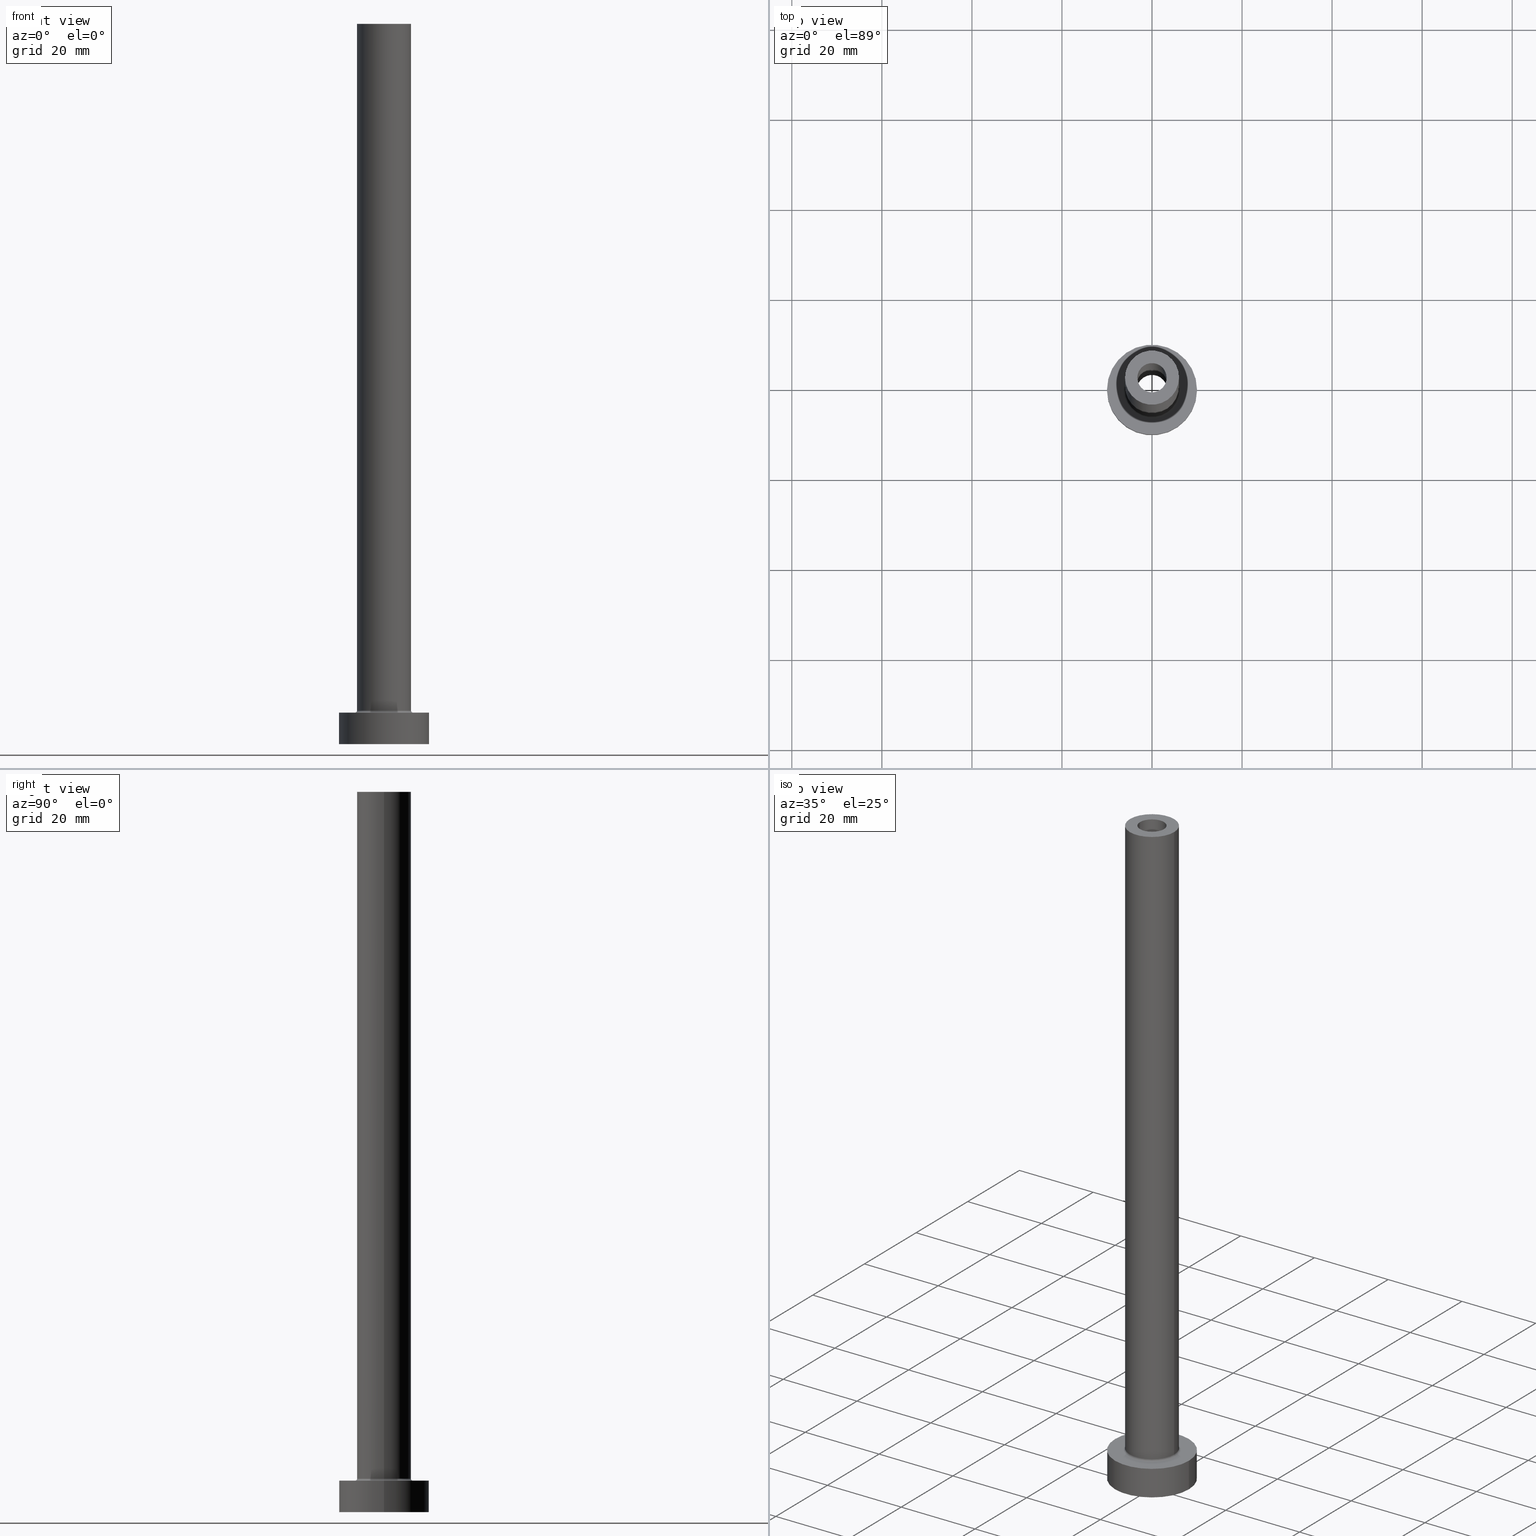
[diagram: canonical four-view strip — front | top / right | iso, engineering-drawing reading convention]
A machine part, canonical four-view strip (front | top / right | iso — engineering-drawing reading convention). The complete STEP part file that produces these views, byte-faithful:
ISO-10303-21;
HEADER;
FILE_DESCRIPTION (( 'STEP AP203' ),
    '1' );
FILE_NAME ('f25f.STEP',
    '2023-02-13T13:32:08',
    ( '' ),
    ( '' ),
    'SwSTEP 2.0',
    'SolidWorks 2019',
    '' );
FILE_SCHEMA (( 'CONFIG_CONTROL_DESIGN' ));
ENDSEC;

DATA;
#1 = CARTESIAN_POINT ( 'NONE',  ( 0.000000000000000000, 0.000000000000000000, 160.0000000000000000 ) ) ;
#2 = DIRECTION ( 'NONE',  ( 1.000000000000000000, 0.000000000000000000, 0.000000000000000000 ) ) ;
#3 = AXIS2_PLACEMENT_3D ( 'NONE', #337, #227, #298 ) ;
#4 = PERSON_AND_ORGANIZATION ( #405, #423 ) ;
#5 = DIRECTION ( 'NONE',  ( -1.000000000000000000, 0.000000000000000000, 0.000000000000000000 ) ) ;
#6 = COORDINATED_UNIVERSAL_TIME_OFFSET ( 1, 0, .AHEAD. ) ;
#7 = EDGE_CURVE ( 'NONE', #299, #183, #323, .T. ) ;
#8 = DATE_TIME_ROLE ( 'creation_date' ) ;
#9 = LINE ( 'NONE', #250, #452 ) ;
#10 = CIRCLE ( 'NONE', #292, 3.399999999999999911 ) ;
#11 = ORIENTED_EDGE ( 'NONE', *, *, #283, .T. ) ;
#12 = VERTEX_POINT ( 'NONE', #22 ) ;
#13 = CARTESIAN_POINT ( 'NONE',  ( -3.250000000000000444, 0.000000000000000000, 160.0000000000000000 ) ) ;
#14 = VERTEX_POINT ( 'NONE', #160 ) ;
#15 = CIRCLE ( 'NONE', #274, 6.500000000000000888 ) ;
#16 = CC_DESIGN_PERSON_AND_ORGANIZATION_ASSIGNMENT ( #252, #357, ( #432 ) ) ;
#17 = VERTEX_POINT ( 'NONE', #424 ) ;
#18 = EDGE_CURVE ( 'NONE', #167, #383, #112, .T. ) ;
#19 = VECTOR ( 'NONE', #259, 1000.000000000000000 ) ;
#20 = LOCAL_TIME ( 14, 32, 8.000000000000000000, #267 ) ;
#21 = DIRECTION ( 'NONE',  ( -1.000000000000000000, 0.000000000000000000, 0.000000000000000000 ) ) ;
#22 = CARTESIAN_POINT ( 'NONE',  ( 10.00000000000000000, 1.224646799147353256E-15, 7.000000000000000000 ) ) ;
#23 = CYLINDRICAL_SURFACE ( 'NONE', #402, 10.00000000000000000 ) ;
#24 = CIRCLE ( 'NONE', #285, 10.00000000000000000 ) ;
#25 = LINE ( 'NONE', #304, #104 ) ;
#26 = DIRECTION ( 'NONE',  ( 1.000000000000000000, 0.000000000000000000, 0.000000000000000000 ) ) ;
#27 = ORIENTED_EDGE ( 'NONE', *, *, #335, .F. ) ;
#28 = CIRCLE ( 'NONE', #178, 3.399999999999999911 ) ;
#29 = DATE_TIME_ROLE ( 'classification_date' ) ;
#30 = CARTESIAN_POINT ( 'NONE',  ( 0.000000000000000000, 0.000000000000000000, 160.0000000000000000 ) ) ;
#31 = FACE_OUTER_BOUND ( 'NONE', #325, .T. ) ;
#32 = CARTESIAN_POINT ( 'NONE',  ( 0.000000000000000000, 0.000000000000000000, 7.000000000000000000 ) ) ;
#33 = CIRCLE ( 'NONE', #429, 0.5000000000000004441 ) ;
#34 = APPLICATION_PROTOCOL_DEFINITION ( 'international standard', 'config_control_design', 1994, #387 ) ;
#35 = DIRECTION ( 'NONE',  ( 0.000000000000000000, 0.000000000000000000, 1.000000000000000000 ) ) ;
#36 = PERSON_AND_ORGANIZATION_ROLE ( 'design_supplier' ) ;
#37 = MANIFOLD_SOLID_BREP ( 'Odebrat vysunut�m4', #336 ) ;
#38 = EDGE_CURVE ( 'NONE', #81, #17, #232, .T. ) ;
#39 = CARTESIAN_POINT ( 'NONE',  ( 0.000000000000000000, 0.000000000000000000, 115.0000000000000000 ) ) ;
#40 = CALENDAR_DATE ( 2023, 13, 2 ) ;
#41 = ORIENTED_EDGE ( 'NONE', *, *, #438, .T. ) ;
#42 = DIRECTION ( 'NONE',  ( 0.000000000000000000, 0.000000000000000000, -1.000000000000000000 ) ) ;
#43 = AXIS2_PLACEMENT_3D ( 'NONE', #321, #105, #102 ) ;
#44 = EDGE_CURVE ( 'NONE', #183, #410, #33, .T. ) ;
#45 = CC_DESIGN_APPROVAL ( #73, ( #432 ) ) ;
#46 = ORIENTED_EDGE ( 'NONE', *, *, #283, .F. ) ;
#47 = CARTESIAN_POINT ( 'NONE',  ( 0.000000000000000000, 0.000000000000000000, 160.0000000000000000 ) ) ;
#48 = LINE ( 'NONE', #181, #19 ) ;
#49 = ORIENTED_EDGE ( 'NONE', *, *, #401, .F. ) ;
#50 = FACE_OUTER_BOUND ( 'NONE', #328, .T. ) ;
#51 = AXIS2_PLACEMENT_3D ( 'NONE', #47, #444, #399 ) ;
#52 = DIRECTION ( 'NONE',  ( 0.000000000000000000, 0.000000000000000000, 1.000000000000000000 ) ) ;
#53 = CC_DESIGN_PERSON_AND_ORGANIZATION_ASSIGNMENT ( #284, #430, ( #327 ) ) ;
#54 = ORIENTED_EDGE ( 'NONE', *, *, #210, .F. ) ;
#55 = DIRECTION ( 'NONE',  ( 0.000000000000000000, -1.000000000000000000, 0.000000000000000000 ) ) ;
#56 = CARTESIAN_POINT ( 'NONE',  ( 0.000000000000000000, 0.000000000000000000, 0.000000000000000000 ) ) ;
#57 = CYLINDRICAL_SURFACE ( 'NONE', #386, 3.399999999999999911 ) ;
#58 = FACE_BOUND ( 'NONE', #290, .T. ) ;
#59 = DIRECTION ( 'NONE',  ( 1.000000000000000000, 0.000000000000000000, 0.000000000000000000 ) ) ;
#60 = CC_DESIGN_APPROVAL ( #334, ( #419 ) ) ;
#61 = CARTESIAN_POINT ( 'NONE',  ( 0.000000000000000000, 0.000000000000000000, 160.0000000000000000 ) ) ;
#62 = CARTESIAN_POINT ( 'NONE',  ( 0.000000000000000000, 0.000000000000000000, 160.0000000000000000 ) ) ;
#63 = DIRECTION ( 'NONE',  ( 1.000000000000000000, 0.000000000000000000, 0.000000000000000000 ) ) ;
#64 = DESIGN_CONTEXT ( 'detailed design', #387, 'design' ) ;
#65 = ADVANCED_FACE ( 'NONE', ( #257, #50 ), #397, .F. ) ;
#66 = CARTESIAN_POINT ( 'NONE',  ( -10.00000000000000000, 0.000000000000000000, 0.000000000000000000 ) ) ;
#67 = DIRECTION ( 'NONE',  ( 0.000000000000000000, 0.000000000000000000, 1.000000000000000000 ) ) ;
#68 = ORIENTED_EDGE ( 'NONE', *, *, #261, .F. ) ;
#69 = TOROIDAL_SURFACE ( 'NONE', #326, 6.500000000000000888, 0.5000000000000000000 ) ;
#70 = DIRECTION ( 'NONE',  ( -0.000000000000000000, -0.000000000000000000, -1.000000000000000000 ) ) ;
#71 = EDGE_CURVE ( 'NONE', #362, #410, #249, .T. ) ;
#72 = DIRECTION ( 'NONE',  ( -0.000000000000000000, -0.000000000000000000, -1.000000000000000000 ) ) ;
#73 = APPROVAL ( #289, 'NEUR�EN�' ) ;
#74 = PERSON_AND_ORGANIZATION_ROLE ( 'design_owner' ) ;
#75 =( LENGTH_UNIT ( ) NAMED_UNIT ( * ) SI_UNIT ( .MILLI., .METRE. ) );
#76 = ADVANCED_FACE ( 'NONE', ( #420 ), #204, .F. ) ;
#77 = COORDINATED_UNIVERSAL_TIME_OFFSET ( 1, 0, .AHEAD. ) ;
#78 = EDGE_LOOP ( 'NONE', ( #146, #367 ) ) ;
#79 = VERTEX_POINT ( 'NONE', #94 ) ;
#80 = AXIS2_PLACEMENT_3D ( 'NONE', #384, #170, #417 ) ;
#81 = VERTEX_POINT ( 'NONE', #135 ) ;
#82 = ORIENTED_EDGE ( 'NONE', *, *, #108, .T. ) ;
#83 = FACE_OUTER_BOUND ( 'NONE', #437, .T. ) ;
#84 = CARTESIAN_POINT ( 'NONE',  ( 6.500000000000000888, 0.000000000000000000, 7.500000000000007105 ) ) ;
#85 = EDGE_CURVE ( 'NONE', #79, #191, #412, .T. ) ;
#86 = CARTESIAN_POINT ( 'NONE',  ( -3.250000000000000444, 0.000000000000000000, 115.0000000000000000 ) ) ;
#87 = AXIS2_PLACEMENT_3D ( 'NONE', #30, #169, #371 ) ;
#88 = LOCAL_TIME ( 14, 32, 8.000000000000000000, #6 ) ;
#89 = ORIENTED_EDGE ( 'NONE', *, *, #270, .T. ) ;
#90 = CALENDAR_DATE ( 2023, 13, 2 ) ;
#91 = DIRECTION ( 'NONE',  ( 0.000000000000000000, 0.000000000000000000, 1.000000000000000000 ) ) ;
#92 = EDGE_LOOP ( 'NONE', ( #363, #136 ) ) ;
#93 = EDGE_LOOP ( 'NONE', ( #297, #456, #258, #222 ) ) ;
#94 = CARTESIAN_POINT ( 'NONE',  ( 6.000000000000000888, 7.347880794884120722E-16, 160.0000000000000000 ) ) ;
#95 = CARTESIAN_POINT ( 'NONE',  ( 0.000000000000000000, 0.000000000000000000, 7.500000000000007105 ) ) ;
#96 = VERTEX_POINT ( 'NONE', #411 ) ;
#97 = CARTESIAN_POINT ( 'NONE',  ( -6.500000000000000888, 7.960204194457796463E-16, 7.500000000000007105 ) ) ;
#98 = EDGE_CURVE ( 'NONE', #309, #12, #366, .T. ) ;
#99 = DIRECTION ( 'NONE',  ( 1.000000000000000000, 0.000000000000000000, 0.000000000000000000 ) ) ;
#100 = DATE_AND_TIME ( #40, #301 ) ;
#101 = DIRECTION ( 'NONE',  ( 0.000000000000000000, 0.000000000000000000, -1.000000000000000000 ) ) ;
#102 = DIRECTION ( 'NONE',  ( -1.000000000000000000, 0.000000000000000000, 0.000000000000000000 ) ) ;
#103 = DIRECTION ( 'NONE',  ( 0.000000000000000000, 0.000000000000000000, 1.000000000000000000 ) ) ;
#104 = VECTOR ( 'NONE', #70, 1000.000000000000000 ) ;
#105 = DIRECTION ( 'NONE',  ( -0.000000000000000000, -0.000000000000000000, -1.000000000000000000 ) ) ;
#106 = AXIS2_PLACEMENT_3D ( 'NONE', #61, #91, #381 ) ;
#107 = AXIS2_PLACEMENT_3D ( 'NONE', #407, #349, #448 ) ;
#108 = EDGE_CURVE ( 'NONE', #12, #309, #24, .T. ) ;
#109 = APPROVAL_PERSON_ORGANIZATION ( #447, #334, #457 ) ;
#110 = DATE_AND_TIME ( #322, #117 ) ;
#111 = ORIENTED_EDGE ( 'NONE', *, *, #345, .T. ) ;
#112 = CIRCLE ( 'NONE', #172, 10.00000000000000000 ) ;
#113 = ORIENTED_EDGE ( 'NONE', *, *, #438, .F. ) ;
#114 = DIRECTION ( 'NONE',  ( 0.000000000000000000, 0.000000000000000000, -1.000000000000000000 ) ) ;
#115 = CIRCLE ( 'NONE', #350, 3.250000000000000444 ) ;
#116 = PRODUCT_DEFINITION_SHAPE ( 'NONE', 'NONE',  #419 ) ;
#117 = LOCAL_TIME ( 14, 32, 8.000000000000000000, #426 ) ;
#118 = ORIENTED_EDGE ( 'NONE', *, *, #353, .T. ) ;
#119 = VERTEX_POINT ( 'NONE', #354 ) ;
#120 = EDGE_LOOP ( 'NONE', ( #391, #113 ) ) ;
#121 = LINE ( 'NONE', #265, #207 ) ;
#122 = AXIS2_PLACEMENT_3D ( 'NONE', #245, #103, #130 ) ;
#123 = ORIENTED_EDGE ( 'NONE', *, *, #18, .F. ) ;
#124 = ADVANCED_FACE ( 'NONE', ( #242 ), #264, .F. ) ;
#125 = APPROVAL_STATUS ( 'not_yet_approved' ) ;
#126 = LINE ( 'NONE', #376, #435 ) ;
#127 = EDGE_LOOP ( 'NONE', ( #333, #82 ) ) ;
#128 = DIRECTION ( 'NONE',  ( 1.000000000000000000, 0.000000000000000000, -0.000000000000000000 ) ) ;
#129 = LINE ( 'NONE', #307, #254 ) ;
#130 = DIRECTION ( 'NONE',  ( 1.000000000000000000, 0.000000000000000000, 0.000000000000000000 ) ) ;
#131 = DIRECTION ( 'NONE',  ( 0.000000000000000000, 0.000000000000000000, 1.000000000000000000 ) ) ;
#132 = ORIENTED_EDGE ( 'NONE', *, *, #44, .T. ) ;
#133 = CIRCLE ( 'NONE', #143, 6.000000000000000888 ) ;
#134 = MECHANICAL_CONTEXT ( 'NONE', #176, 'mechanical' ) ;
#135 = CARTESIAN_POINT ( 'NONE',  ( -3.250000000000000444, 0.000000000000000000, 160.0000000000000000 ) ) ;
#136 = ORIENTED_EDGE ( 'NONE', *, *, #71, .T. ) ;
#137 = APPROVAL_DATE_TIME ( #244, #313 ) ;
#138 = CARTESIAN_POINT ( 'NONE',  ( 0.000000000000000000, 0.000000000000000000, 7.000000000000000000 ) ) ;
#139 = CARTESIAN_POINT ( 'NONE',  ( 0.000000000000000000, 0.000000000000000000, 115.0000000000000000 ) ) ;
#140 = CC_DESIGN_PERSON_AND_ORGANIZATION_ASSIGNMENT ( #380, #147, ( #419 ) ) ;
#141 = AXIS2_PLACEMENT_3D ( 'NONE', #379, #303, #59 ) ;
#142 = CARTESIAN_POINT ( 'NONE',  ( -6.000000000000000888, 0.000000000000000000, 160.0000000000000000 ) ) ;
#143 = AXIS2_PLACEMENT_3D ( 'NONE', #95, #52, #63 ) ;
#144 = DIRECTION ( 'NONE',  ( 1.000000000000000000, 0.000000000000000000, 0.000000000000000000 ) ) ;
#145 = SECURITY_CLASSIFICATION_LEVEL ( 'unclassified' ) ;
#146 = ORIENTED_EDGE ( 'NONE', *, *, #443, .T. ) ;
#147 = PERSON_AND_ORGANIZATION_ROLE ( 'creator' ) ;
#148 = CC_DESIGN_DATE_AND_TIME_ASSIGNMENT ( #110, #8, ( #419 ) ) ;
#149 = ORIENTED_EDGE ( 'NONE', *, *, #98, .F. ) ;
#150 = ADVANCED_FACE ( 'NONE', ( #311 ), #194, .F. ) ;
#151 = DIRECTION ( 'NONE',  ( 1.000000000000000000, 0.000000000000000000, 0.000000000000000000 ) ) ;
#152 = FACE_OUTER_BOUND ( 'NONE', #127, .T. ) ;
#153 = ORIENTED_EDGE ( 'NONE', *, *, #428, .T. ) ;
#154 = ORIENTED_EDGE ( 'NONE', *, *, #241, .T. ) ;
#155 = DIRECTION ( 'NONE',  ( 1.000000000000000000, 0.000000000000000000, 0.000000000000000000 ) ) ;
#156 = AXIS2_PLACEMENT_3D ( 'NONE', #97, #378, #201 ) ;
#157 = ADVANCED_FACE ( 'NONE', ( #158 ), #23, .T. ) ;
#158 = FACE_OUTER_BOUND ( 'NONE', #450, .T. ) ;
#159 = PLANE ( 'NONE',  #442 ) ;
#160 = CARTESIAN_POINT ( 'NONE',  ( 3.399999999999999911, 4.163799117101000559E-16, 0.000000000000000000 ) ) ;
#161 = CARTESIAN_POINT ( 'NONE',  ( 0.000000000000000000, 0.000000000000000000, 7.500000000000007105 ) ) ;
#162 = LINE ( 'NONE', #13, #393 ) ;
#163 = AXIS2_PLACEMENT_3D ( 'NONE', #32, #346, #198 ) ;
#164 = EDGE_CURVE ( 'NONE', #79, #183, #25, .T. ) ;
#165 = CYLINDRICAL_SURFACE ( 'NONE', #87, 3.250000000000000444 ) ;
#166 = AXIS2_PLACEMENT_3D ( 'NONE', #302, #365, #314 ) ;
#167 = VERTEX_POINT ( 'NONE', #66 ) ;
#168 = PERSON_AND_ORGANIZATION ( #405, #423 ) ;
#169 = DIRECTION ( 'NONE',  ( 0.000000000000000000, 0.000000000000000000, -1.000000000000000000 ) ) ;
#170 = DIRECTION ( 'NONE',  ( -0.000000000000000000, -0.000000000000000000, -1.000000000000000000 ) ) ;
#171 = DIRECTION ( 'NONE',  ( 1.000000000000000000, 0.000000000000000000, 0.000000000000000000 ) ) ;
#172 = AXIS2_PLACEMENT_3D ( 'NONE', #56, #189, #185 ) ;
#173 = CALENDAR_DATE ( 2023, 13, 2 ) ;
#174 = CIRCLE ( 'NONE', #236, 6.000000000000000888 ) ;
#175 = PERSON_AND_ORGANIZATION ( #405, #423 ) ;
#176 = APPLICATION_CONTEXT ( 'configuration controlled 3d designs of mechanical parts and assemblies' ) ;
#177 = DIRECTION ( 'NONE',  ( 1.000000000000000000, 0.000000000000000000, 0.000000000000000000 ) ) ;
#178 = AXIS2_PLACEMENT_3D ( 'NONE', #268, #187, #26 ) ;
#179 = FACE_BOUND ( 'NONE', #92, .T. ) ;
#180 =( GEOMETRIC_REPRESENTATION_CONTEXT ( 3 ) GLOBAL_UNCERTAINTY_ASSIGNED_CONTEXT ( ( #317 ) ) GLOBAL_UNIT_ASSIGNED_CONTEXT ( ( #75, #238, #458 ) ) REPRESENTATION_CONTEXT ( 'NONE', 'WORKASPACE' ) );
#181 = CARTESIAN_POINT ( 'NONE',  ( -6.000000000000000888, 0.000000000000000000, 160.0000000000000000 ) ) ;
#182 = ORIENTED_EDGE ( 'NONE', *, *, #241, .F. ) ;
#183 = VERTEX_POINT ( 'NONE', #239 ) ;
#184 = CYLINDRICAL_SURFACE ( 'NONE', #166, 6.000000000000000888 ) ;
#185 = DIRECTION ( 'NONE',  ( 1.000000000000000000, 0.000000000000000000, 0.000000000000000000 ) ) ;
#186 = ORIENTED_EDGE ( 'NONE', *, *, #108, .F. ) ;
#187 = DIRECTION ( 'NONE',  ( 0.000000000000000000, 0.000000000000000000, 1.000000000000000000 ) ) ;
#188 = AXIS2_PLACEMENT_3D ( 'NONE', #427, #248, #5 ) ;
#189 = DIRECTION ( 'NONE',  ( 0.000000000000000000, 0.000000000000000000, 1.000000000000000000 ) ) ;
#190 = AXIS2_PLACEMENT_3D ( 'NONE', #211, #35, #144 ) ;
#191 = VERTEX_POINT ( 'NONE', #142 ) ;
#192 = ADVANCED_FACE ( 'NONE', ( #230 ), #165, .F. ) ;
#193 = ORIENTED_EDGE ( 'NONE', *, *, #312, .T. ) ;
#194 = CYLINDRICAL_SURFACE ( 'NONE', #212, 3.250000000000000444 ) ;
#195 = CIRCLE ( 'NONE', #453, 3.250000000000000444 ) ;
#196 = LINE ( 'NONE', #331, #422 ) ;
#197 = ORIENTED_EDGE ( 'NONE', *, *, #392, .T. ) ;
#198 = DIRECTION ( 'NONE',  ( 1.000000000000000000, 0.000000000000000000, 0.000000000000000000 ) ) ;
#199 = CARTESIAN_POINT ( 'NONE',  ( 10.00000000000000000, 1.224646799147353256E-15, 0.000000000000000000 ) ) ;
#200 = ADVANCED_FACE ( 'NONE', ( #235 ), #69, .F. ) ;
#201 = DIRECTION ( 'NONE',  ( -1.000000000000000000, 1.224646799147351482E-16, 0.000000000000000000 ) ) ;
#202 = CARTESIAN_POINT ( 'NONE',  ( -10.00000000000000000, 0.000000000000000000, 7.000000000000000000 ) ) ;
#203 = APPLICATION_PROTOCOL_DEFINITION ( 'international standard', 'config_control_design', 1994, #176 ) ;
#204 = CYLINDRICAL_SURFACE ( 'NONE', #107, 3.399999999999999911 ) ;
#205 = ADVANCED_FACE ( 'NONE', ( #459 ), #57, .F. ) ;
#206 = FACE_BOUND ( 'NONE', #233, .T. ) ;
#207 = VECTOR ( 'NONE', #368, 1000.000000000000000 ) ;
#208 = DIRECTION ( 'NONE',  ( 0.000000000000000000, 0.000000000000000000, 1.000000000000000000 ) ) ;
#209 = PRODUCT ( 'f25f', 'f25f', '', ( #134 ) ) ;
#210 = EDGE_CURVE ( 'NONE', #299, #362, #332, .T. ) ;
#211 = CARTESIAN_POINT ( 'NONE',  ( 0.000000000000000000, 0.000000000000000000, 115.0000000000000000 ) ) ;
#212 = AXIS2_PLACEMENT_3D ( 'NONE', #1, #385, #21 ) ;
#213 = DATE_AND_TIME ( #173, #88 ) ;
#214 = ADVANCED_FACE ( 'NONE', ( #454 ), #431, .T. ) ;
#215 = EDGE_LOOP ( 'NONE', ( #223, #49 ) ) ;
#216 = CC_DESIGN_PERSON_AND_ORGANIZATION_ASSIGNMENT ( #168, #74, ( #209 ) ) ;
#217 = EDGE_LOOP ( 'NONE', ( #288, #441, #153, #400 ) ) ;
#218 = AXIS2_PLACEMENT_3D ( 'NONE', #139, #436, #324 ) ;
#219 = LOCAL_TIME ( 14, 32, 8.000000000000000000, #279 ) ;
#220 = EDGE_LOOP ( 'NONE', ( #247, #89, #41, #182 ) ) ;
#221 = DIRECTION ( 'NONE',  ( 0.000000000000000000, 0.000000000000000000, 1.000000000000000000 ) ) ;
#222 = ORIENTED_EDGE ( 'NONE', *, *, #312, .F. ) ;
#223 = ORIENTED_EDGE ( 'NONE', *, *, #318, .F. ) ;
#224 = PRODUCT_RELATED_PRODUCT_CATEGORY ( 'detail', '', ( #209 ) ) ;
#225 = CIRCLE ( 'NONE', #286, 10.00000000000000000 ) ;
#226 = APPROVAL_PERSON_ORGANIZATION ( #234, #313, #341 ) ;
#227 = DIRECTION ( 'NONE',  ( 0.000000000000000000, 0.000000000000000000, 1.000000000000000000 ) ) ;
#228 = EDGE_CURVE ( 'NONE', #266, #377, #356, .T. ) ;
#229 = VERTEX_POINT ( 'NONE', #359 ) ;
#230 = FACE_OUTER_BOUND ( 'NONE', #93, .T. ) ;
#231 = DIRECTION ( 'NONE',  ( 0.000000000000000000, 0.000000000000000000, -1.000000000000000000 ) ) ;
#232 = CIRCLE ( 'NONE', #51, 3.250000000000000444 ) ;
#233 = EDGE_LOOP ( 'NONE', ( #434, #111 ) ) ;
#234 = PERSON_AND_ORGANIZATION ( #405, #423 ) ;
#235 = FACE_OUTER_BOUND ( 'NONE', #251, .T. ) ;
#236 = AXIS2_PLACEMENT_3D ( 'NONE', #389, #282, #240 ) ;
#237 = CC_DESIGN_SECURITY_CLASSIFICATION ( #327, ( #432 ) ) ;
#238 =( NAMED_UNIT ( * ) PLANE_ANGLE_UNIT ( ) SI_UNIT ( $, .RADIAN. ) );
#239 = CARTESIAN_POINT ( 'NONE',  ( 6.000000000000000888, 7.347880794884120722E-16, 7.500000000000007105 ) ) ;
#240 = DIRECTION ( 'NONE',  ( 1.000000000000000000, 0.000000000000000000, 0.000000000000000000 ) ) ;
#241 = EDGE_CURVE ( 'NONE', #96, #229, #9, .T. ) ;
#242 = FACE_OUTER_BOUND ( 'NONE', #398, .T. ) ;
#243 = DIRECTION ( 'NONE',  ( 1.000000000000000000, 0.000000000000000000, 0.000000000000000000 ) ) ;
#244 = DATE_AND_TIME ( #90, #20 ) ;
#245 = CARTESIAN_POINT ( 'NONE',  ( 0.000000000000000000, 0.000000000000000000, 7.500000000000007105 ) ) ;
#246 = CARTESIAN_POINT ( 'NONE',  ( 0.000000000000000000, 0.000000000000000000, 0.000000000000000000 ) ) ;
#247 = ORIENTED_EDGE ( 'NONE', *, *, #318, .T. ) ;
#248 = DIRECTION ( 'NONE',  ( -0.000000000000000000, -0.000000000000000000, -1.000000000000000000 ) ) ;
#249 = CIRCLE ( 'NONE', #308, 6.500000000000000888 ) ;
#250 = CARTESIAN_POINT ( 'NONE',  ( -3.399999999999999911, 0.000000000000000000, 124.6166522241370558 ) ) ;
#251 = EDGE_LOOP ( 'NONE', ( #54, #46, #132, #396 ) ) ;
#252 = PERSON_AND_ORGANIZATION ( #405, #423 ) ;
#253 = ORIENTED_EDGE ( 'NONE', *, *, #345, .F. ) ;
#254 = VECTOR ( 'NONE', #231, 1000.000000000000000 ) ;
#255 = AXIS2_PLACEMENT_3D ( 'NONE', #315, #451, #99 ) ;
#256 = ADVANCED_FACE ( 'NONE', ( #179, #152 ), #296, .T. ) ;
#257 = FACE_BOUND ( 'NONE', #120, .T. ) ;
#258 = ORIENTED_EDGE ( 'NONE', *, *, #228, .F. ) ;
#259 = DIRECTION ( 'NONE',  ( -0.000000000000000000, -0.000000000000000000, -1.000000000000000000 ) ) ;
#260 = ORIENTED_EDGE ( 'NONE', *, *, #392, .F. ) ;
#261 = EDGE_CURVE ( 'NONE', #410, #362, #15, .T. ) ;
#262 = CARTESIAN_POINT ( 'NONE',  ( 0.000000000000000000, 0.000000000000000000, 7.000000000000000000 ) ) ;
#263 = ORIENTED_EDGE ( 'NONE', *, *, #355, .F. ) ;
#264 = TOROIDAL_SURFACE ( 'NONE', #122, 6.500000000000000888, 0.5000000000000000000 ) ;
#265 = CARTESIAN_POINT ( 'NONE',  ( 3.399999999999999911, 4.163799117101000559E-16, 124.6166522241370558 ) ) ;
#266 = VERTEX_POINT ( 'NONE', #86 ) ;
#267 = COORDINATED_UNIVERSAL_TIME_OFFSET ( 1, 0, .AHEAD. ) ;
#268 = CARTESIAN_POINT ( 'NONE',  ( 0.000000000000000000, 0.000000000000000000, 115.0000000000000000 ) ) ;
#269 = ORIENTED_EDGE ( 'NONE', *, *, #38, .F. ) ;
#270 = EDGE_CURVE ( 'NONE', #119, #14, #121, .T. ) ;
#271 = DIRECTION ( 'NONE',  ( -1.000000000000000000, 0.000000000000000000, 0.000000000000000000 ) ) ;
#272 = CARTESIAN_POINT ( 'NONE',  ( 3.250000000000000444, 3.980102097228897245E-16, 115.0000000000000000 ) ) ;
#273 = CARTESIAN_POINT ( 'NONE',  ( 0.000000000000000000, 0.000000000000000000, 7.000000000000000000 ) ) ;
#274 = AXIS2_PLACEMENT_3D ( 'NONE', #262, #440, #155 ) ;
#275 = DATE_AND_TIME ( #310, #219 ) ;
#276 = CARTESIAN_POINT ( 'NONE',  ( 0.000000000000000000, 0.000000000000000000, 7.000000000000000000 ) ) ;
#277 = CARTESIAN_POINT ( 'NONE',  ( 0.000000000000000000, 0.000000000000000000, 160.0000000000000000 ) ) ;
#278 = ORIENTED_EDGE ( 'NONE', *, *, #408, .T. ) ;
#279 = COORDINATED_UNIVERSAL_TIME_OFFSET ( 1, 0, .AHEAD. ) ;
#280 = DIRECTION ( 'NONE',  ( 0.000000000000000000, 0.000000000000000000, 1.000000000000000000 ) ) ;
#281 = CIRCLE ( 'NONE', #80, 3.399999999999999911 ) ;
#282 = DIRECTION ( 'NONE',  ( 0.000000000000000000, 0.000000000000000000, 1.000000000000000000 ) ) ;
#283 = EDGE_CURVE ( 'NONE', #183, #299, #133, .T. ) ;
#284 = PERSON_AND_ORGANIZATION ( #405, #423 ) ;
#285 = AXIS2_PLACEMENT_3D ( 'NONE', #276, #208, #319 ) ;
#286 = AXIS2_PLACEMENT_3D ( 'NONE', #343, #131, #421 ) ;
#287 = ADVANCED_FACE ( 'NONE', ( #83 ), #184, .T. ) ;
#288 = ORIENTED_EDGE ( 'NONE', *, *, #164, .F. ) ;
#289 = APPROVAL_STATUS ( 'not_yet_approved' ) ;
#290 = EDGE_LOOP ( 'NONE', ( #269, #260 ) ) ;
#291 = AXIS2_PLACEMENT_3D ( 'NONE', #342, #280, #128 ) ;
#292 = AXIS2_PLACEMENT_3D ( 'NONE', #39, #67, #177 ) ;
#293 = CC_DESIGN_APPROVAL ( #313, ( #327 ) ) ;
#294 = CC_DESIGN_PERSON_AND_ORGANIZATION_ASSIGNMENT ( #4, #36, ( #432 ) ) ;
#295 = ORIENTED_EDGE ( 'NONE', *, *, #18, .T. ) ;
#296 = PLANE ( 'NONE',  #3 ) ;
#297 = ORIENTED_EDGE ( 'NONE', *, *, #38, .T. ) ;
#298 = DIRECTION ( 'NONE',  ( 1.000000000000000000, 0.000000000000000000, -0.000000000000000000 ) ) ;
#299 = VERTEX_POINT ( 'NONE', #415 ) ;
#300 = AXIS2_PLACEMENT_3D ( 'NONE', #246, #72, #243 ) ;
#301 = LOCAL_TIME ( 14, 32, 8.000000000000000000, #77 ) ;
#302 = CARTESIAN_POINT ( 'NONE',  ( 0.000000000000000000, 0.000000000000000000, 160.0000000000000000 ) ) ;
#303 = DIRECTION ( 'NONE',  ( 0.000000000000000000, 0.000000000000000000, 1.000000000000000000 ) ) ;
#304 = CARTESIAN_POINT ( 'NONE',  ( 6.000000000000000888, 7.347880794884120722E-16, 160.0000000000000000 ) ) ;
#305 = DIRECTION ( 'NONE',  ( 0.000000000000000000, 0.000000000000000000, 1.000000000000000000 ) ) ;
#306 = DIRECTION ( 'NONE',  ( -0.000000000000000000, -0.000000000000000000, -1.000000000000000000 ) ) ;
#307 = CARTESIAN_POINT ( 'NONE',  ( 3.250000000000000444, 3.980102097228897245E-16, 160.0000000000000000 ) ) ;
#308 = AXIS2_PLACEMENT_3D ( 'NONE', #138, #306, #171 ) ;
#309 = VERTEX_POINT ( 'NONE', #202 ) ;
#310 = CALENDAR_DATE ( 2023, 13, 2 ) ;
#311 = FACE_OUTER_BOUND ( 'NONE', #360, .T. ) ;
#312 = EDGE_CURVE ( 'NONE', #81, #266, #162, .T. ) ;
#313 = APPROVAL ( #125, 'NEUR�EN�' ) ;
#314 = DIRECTION ( 'NONE',  ( -1.000000000000000000, 0.000000000000000000, 0.000000000000000000 ) ) ;
#315 = CARTESIAN_POINT ( 'NONE',  ( 0.000000000000000000, 0.000000000000000000, 0.000000000000000000 ) ) ;
#316 = APPROVAL_STATUS ( 'not_yet_approved' ) ;
#317 = UNCERTAINTY_MEASURE_WITH_UNIT (LENGTH_MEASURE( 1.000000000000000082E-05 ), #75, 'distance_accuracy_value', 'NONE');
#318 = EDGE_CURVE ( 'NONE', #96, #119, #28, .T. ) ;
#319 = DIRECTION ( 'NONE',  ( 1.000000000000000000, 0.000000000000000000, 0.000000000000000000 ) ) ;
#320 = APPROVAL_DATE_TIME ( #213, #73 ) ;
#321 = CARTESIAN_POINT ( 'NONE',  ( 0.000000000000000000, 0.000000000000000000, 7.000000000000000000 ) ) ;
#322 = CALENDAR_DATE ( 2023, 13, 2 ) ;
#323 = CIRCLE ( 'NONE', #141, 6.000000000000000888 ) ;
#324 = DIRECTION ( 'NONE',  ( 1.000000000000000000, 0.000000000000000000, -0.000000000000000000 ) ) ;
#325 = EDGE_LOOP ( 'NONE', ( #186, #373, #329, #340 ) ) ;
#326 = AXIS2_PLACEMENT_3D ( 'NONE', #161, #375, #414 ) ;
#327 = SECURITY_CLASSIFICATION ( '', '', #145 ) ;
#328 = EDGE_LOOP ( 'NONE', ( #123, #439 ) ) ;
#329 = ORIENTED_EDGE ( 'NONE', *, *, #390, .T. ) ;
#330 = ORIENTED_EDGE ( 'NONE', *, *, #428, .F. ) ;
#331 = CARTESIAN_POINT ( 'NONE',  ( 10.00000000000000000, 1.224646799147353256E-15, 7.000000000000000000 ) ) ;
#332 = CIRCLE ( 'NONE', #156, 0.5000000000000004441 ) ;
#333 = ORIENTED_EDGE ( 'NONE', *, *, #98, .T. ) ;
#334 = APPROVAL ( #316, 'NEUR�EN�' ) ;
#335 = EDGE_CURVE ( 'NONE', #12, #383, #196, .T. ) ;
#336 = CLOSED_SHELL ( 'NONE', ( #192, #76, #124, #287, #406, #157, #256, #65, #214, #364, #200, #205, #425, #150 ) ) ;
#337 = CARTESIAN_POINT ( 'NONE',  ( 0.000000000000000000, 0.000000000000000000, 7.000000000000000000 ) ) ;
#338 = DIRECTION ( 'NONE',  ( -0.000000000000000000, -0.000000000000000000, -1.000000000000000000 ) ) ;
#339 = FACE_OUTER_BOUND ( 'NONE', #78, .T. ) ;
#340 = ORIENTED_EDGE ( 'NONE', *, *, #353, .F. ) ;
#341 = APPROVAL_ROLE ( '' ) ;
#342 = CARTESIAN_POINT ( 'NONE',  ( 0.000000000000000000, 0.000000000000000000, 0.000000000000000000 ) ) ;
#343 = CARTESIAN_POINT ( 'NONE',  ( 0.000000000000000000, 0.000000000000000000, 0.000000000000000000 ) ) ;
#344 = EDGE_LOOP ( 'NONE', ( #361, #369, #154, #278 ) ) ;
#345 = EDGE_CURVE ( 'NONE', #377, #266, #195, .T. ) ;
#346 = DIRECTION ( 'NONE',  ( 0.000000000000000000, 0.000000000000000000, 1.000000000000000000 ) ) ;
#347 = DIRECTION ( 'NONE',  ( 0.000000000000000000, 0.000000000000000000, -1.000000000000000000 ) ) ;
#348 = ORIENTED_EDGE ( 'NONE', *, *, #7, .F. ) ;
#349 = DIRECTION ( 'NONE',  ( 0.000000000000000000, 0.000000000000000000, -1.000000000000000000 ) ) ;
#350 = AXIS2_PLACEMENT_3D ( 'NONE', #277, #358, #2 ) ;
#351 = FACE_OUTER_BOUND ( 'NONE', #215, .T. ) ;
#352 = ADVANCED_BREP_SHAPE_REPRESENTATION ( 'f25f', ( #37, #255 ), #180 ) ;
#353 = EDGE_CURVE ( 'NONE', #309, #167, #126, .T. ) ;
#354 = CARTESIAN_POINT ( 'NONE',  ( 3.399999999999999911, 4.163799117101000559E-16, 115.0000000000000000 ) ) ;
#355 = EDGE_CURVE ( 'NONE', #17, #377, #129, .T. ) ;
#356 = CIRCLE ( 'NONE', #190, 3.250000000000000444 ) ;
#357 = PERSON_AND_ORGANIZATION_ROLE ( 'creator' ) ;
#358 = DIRECTION ( 'NONE',  ( 0.000000000000000000, 0.000000000000000000, 1.000000000000000000 ) ) ;
#359 = CARTESIAN_POINT ( 'NONE',  ( -3.399999999999999911, 0.000000000000000000, 0.000000000000000000 ) ) ;
#360 = EDGE_LOOP ( 'NONE', ( #263, #197, #193, #253 ) ) ;
#361 = ORIENTED_EDGE ( 'NONE', *, *, #270, .F. ) ;
#362 = VERTEX_POINT ( 'NONE', #372 ) ;
#363 = ORIENTED_EDGE ( 'NONE', *, *, #261, .T. ) ;
#364 = ADVANCED_FACE ( 'NONE', ( #58, #339 ), #159, .T. ) ;
#365 = DIRECTION ( 'NONE',  ( -0.000000000000000000, -0.000000000000000000, -1.000000000000000000 ) ) ;
#366 = CIRCLE ( 'NONE', #163, 10.00000000000000000 ) ;
#367 = ORIENTED_EDGE ( 'NONE', *, *, #85, .T. ) ;
#368 = DIRECTION ( 'NONE',  ( 0.000000000000000000, 0.000000000000000000, -1.000000000000000000 ) ) ;
#369 = ORIENTED_EDGE ( 'NONE', *, *, #401, .T. ) ;
#370 = SHAPE_DEFINITION_REPRESENTATION ( #116, #352 ) ;
#371 = DIRECTION ( 'NONE',  ( -1.000000000000000000, 0.000000000000000000, 0.000000000000000000 ) ) ;
#372 = CARTESIAN_POINT ( 'NONE',  ( -6.500000000000000888, 7.960204194457796463E-16, 7.000000000000002665 ) ) ;
#373 = ORIENTED_EDGE ( 'NONE', *, *, #335, .T. ) ;
#374 = CIRCLE ( 'NONE', #300, 3.399999999999999911 ) ;
#375 = DIRECTION ( 'NONE',  ( 0.000000000000000000, 0.000000000000000000, 1.000000000000000000 ) ) ;
#376 = CARTESIAN_POINT ( 'NONE',  ( -10.00000000000000000, 0.000000000000000000, 7.000000000000000000 ) ) ;
#377 = VERTEX_POINT ( 'NONE', #272 ) ;
#378 = DIRECTION ( 'NONE',  ( 1.224646799147353207E-16, 1.000000000000000000, -0.000000000000000000 ) ) ;
#379 = CARTESIAN_POINT ( 'NONE',  ( 0.000000000000000000, 0.000000000000000000, 7.500000000000007105 ) ) ;
#380 = PERSON_AND_ORGANIZATION ( #405, #423 ) ;
#381 = DIRECTION ( 'NONE',  ( 1.000000000000000000, 0.000000000000000000, 0.000000000000000000 ) ) ;
#382 = CARTESIAN_POINT ( 'NONE',  ( 6.500000000000000888, 0.000000000000000000, 7.000000000000002665 ) ) ;
#383 = VERTEX_POINT ( 'NONE', #199 ) ;
#384 = CARTESIAN_POINT ( 'NONE',  ( 0.000000000000000000, 0.000000000000000000, 0.000000000000000000 ) ) ;
#385 = DIRECTION ( 'NONE',  ( 0.000000000000000000, 0.000000000000000000, -1.000000000000000000 ) ) ;
#386 = AXIS2_PLACEMENT_3D ( 'NONE', #445, #101, #271 ) ;
#387 = APPLICATION_CONTEXT ( 'configuration controlled 3d designs of mechanical parts and assemblies' ) ;
#388 = CYLINDRICAL_SURFACE ( 'NONE', #43, 10.00000000000000000 ) ;
#389 = CARTESIAN_POINT ( 'NONE',  ( 0.000000000000000000, 0.000000000000000000, 160.0000000000000000 ) ) ;
#390 = EDGE_CURVE ( 'NONE', #383, #167, #225, .T. ) ;
#391 = ORIENTED_EDGE ( 'NONE', *, *, #408, .F. ) ;
#392 = EDGE_CURVE ( 'NONE', #17, #81, #115, .T. ) ;
#393 = VECTOR ( 'NONE', #347, 1000.000000000000000 ) ;
#394 = APPROVAL_ROLE ( '' ) ;
#395 = CC_DESIGN_DATE_AND_TIME_ASSIGNMENT ( #100, #29, ( #327 ) ) ;
#396 = ORIENTED_EDGE ( 'NONE', *, *, #71, .F. ) ;
#397 = PLANE ( 'NONE',  #291 ) ;
#398 = EDGE_LOOP ( 'NONE', ( #348, #404, #68, #416 ) ) ;
#399 = DIRECTION ( 'NONE',  ( 1.000000000000000000, 0.000000000000000000, 0.000000000000000000 ) ) ;
#400 = ORIENTED_EDGE ( 'NONE', *, *, #7, .T. ) ;
#401 = EDGE_CURVE ( 'NONE', #119, #96, #10, .T. ) ;
#402 = AXIS2_PLACEMENT_3D ( 'NONE', #273, #338, #418 ) ;
#403 = APPROVAL_PERSON_ORGANIZATION ( #175, #73, #394 ) ;
#404 = ORIENTED_EDGE ( 'NONE', *, *, #210, .T. ) ;
#405 = PERSON ( 'NEUR�EN�', 'NEUR�EN�', 'NEUR�EN�', ('NEUR�EN�'), ('NEUR�EN�'), ('NEUR�EN�') ) ;
#406 = ADVANCED_FACE ( 'NONE', ( #31 ), #388, .T. ) ;
#407 = CARTESIAN_POINT ( 'NONE',  ( 0.000000000000000000, 0.000000000000000000, 124.6166522241370558 ) ) ;
#408 = EDGE_CURVE ( 'NONE', #229, #14, #374, .T. ) ;
#409 = DIRECTION ( 'NONE',  ( -0.000000000000000000, -0.000000000000000000, -1.000000000000000000 ) ) ;
#410 = VERTEX_POINT ( 'NONE', #382 ) ;
#411 = CARTESIAN_POINT ( 'NONE',  ( -3.399999999999999911, 0.000000000000000000, 115.0000000000000000 ) ) ;
#412 = CIRCLE ( 'NONE', #106, 6.000000000000000888 ) ;
#413 = ORIENTED_EDGE ( 'NONE', *, *, #85, .F. ) ;
#414 = DIRECTION ( 'NONE',  ( 1.000000000000000000, 0.000000000000000000, 0.000000000000000000 ) ) ;
#415 = CARTESIAN_POINT ( 'NONE',  ( -6.000000000000000888, 0.000000000000000000, 7.500000000000007105 ) ) ;
#416 = ORIENTED_EDGE ( 'NONE', *, *, #44, .F. ) ;
#417 = DIRECTION ( 'NONE',  ( 1.000000000000000000, 0.000000000000000000, 0.000000000000000000 ) ) ;
#418 = DIRECTION ( 'NONE',  ( -1.000000000000000000, 0.000000000000000000, 0.000000000000000000 ) ) ;
#419 = PRODUCT_DEFINITION ( 'NEZN�M�', '', #432, #64 ) ;
#420 = FACE_OUTER_BOUND ( 'NONE', #220, .T. ) ;
#421 = DIRECTION ( 'NONE',  ( 1.000000000000000000, 0.000000000000000000, 0.000000000000000000 ) ) ;
#422 = VECTOR ( 'NONE', #449, 1000.000000000000000 ) ;
#423 = ORGANIZATION ( 'NEUR�EN�', 'NEUR�EN�', '' ) ;
#424 = CARTESIAN_POINT ( 'NONE',  ( 3.250000000000000444, 3.980102097228897245E-16, 160.0000000000000000 ) ) ;
#425 = ADVANCED_FACE ( 'NONE', ( #206, #351 ), #460, .F. ) ;
#426 = COORDINATED_UNIVERSAL_TIME_OFFSET ( 1, 0, .AHEAD. ) ;
#427 = CARTESIAN_POINT ( 'NONE',  ( 0.000000000000000000, 0.000000000000000000, 160.0000000000000000 ) ) ;
#428 = EDGE_CURVE ( 'NONE', #191, #299, #48, .T. ) ;
#429 = AXIS2_PLACEMENT_3D ( 'NONE', #84, #55, #114 ) ;
#430 = PERSON_AND_ORGANIZATION_ROLE ( 'classification_officer' ) ;
#431 = CYLINDRICAL_SURFACE ( 'NONE', #188, 6.000000000000000888 ) ;
#432 = PRODUCT_DEFINITION_FORMATION_WITH_SPECIFIED_SOURCE ( 'LIBOVOLN�', '', #209, .NOT_KNOWN. ) ;
#433 = ORIENTED_EDGE ( 'NONE', *, *, #164, .T. ) ;
#434 = ORIENTED_EDGE ( 'NONE', *, *, #228, .T. ) ;
#435 = VECTOR ( 'NONE', #409, 1000.000000000000000 ) ;
#436 = DIRECTION ( 'NONE',  ( 0.000000000000000000, 0.000000000000000000, 1.000000000000000000 ) ) ;
#437 = EDGE_LOOP ( 'NONE', ( #413, #433, #11, #330 ) ) ;
#438 = EDGE_CURVE ( 'NONE', #14, #229, #281, .T. ) ;
#439 = ORIENTED_EDGE ( 'NONE', *, *, #390, .F. ) ;
#440 = DIRECTION ( 'NONE',  ( -0.000000000000000000, -0.000000000000000000, -1.000000000000000000 ) ) ;
#441 = ORIENTED_EDGE ( 'NONE', *, *, #443, .F. ) ;
#442 = AXIS2_PLACEMENT_3D ( 'NONE', #62, #305, #446 ) ;
#443 = EDGE_CURVE ( 'NONE', #191, #79, #174, .T. ) ;
#444 = DIRECTION ( 'NONE',  ( 0.000000000000000000, 0.000000000000000000, 1.000000000000000000 ) ) ;
#445 = CARTESIAN_POINT ( 'NONE',  ( 0.000000000000000000, 0.000000000000000000, 124.6166522241370558 ) ) ;
#446 = DIRECTION ( 'NONE',  ( 1.000000000000000000, 0.000000000000000000, -0.000000000000000000 ) ) ;
#447 = PERSON_AND_ORGANIZATION ( #405, #423 ) ;
#448 = DIRECTION ( 'NONE',  ( -1.000000000000000000, 0.000000000000000000, 0.000000000000000000 ) ) ;
#449 = DIRECTION ( 'NONE',  ( -0.000000000000000000, -0.000000000000000000, -1.000000000000000000 ) ) ;
#450 = EDGE_LOOP ( 'NONE', ( #27, #149, #118, #295 ) ) ;
#451 = DIRECTION ( 'NONE',  ( 0.000000000000000000, 0.000000000000000000, 1.000000000000000000 ) ) ;
#452 = VECTOR ( 'NONE', #42, 1000.000000000000000 ) ;
#453 = AXIS2_PLACEMENT_3D ( 'NONE', #455, #221, #151 ) ;
#454 = FACE_OUTER_BOUND ( 'NONE', #217, .T. ) ;
#455 = CARTESIAN_POINT ( 'NONE',  ( 0.000000000000000000, 0.000000000000000000, 115.0000000000000000 ) ) ;
#456 = ORIENTED_EDGE ( 'NONE', *, *, #355, .T. ) ;
#457 = APPROVAL_ROLE ( '' ) ;
#458 =( NAMED_UNIT ( * ) SI_UNIT ( $, .STERADIAN. ) SOLID_ANGLE_UNIT ( ) );
#459 = FACE_OUTER_BOUND ( 'NONE', #344, .T. ) ;
#460 = PLANE ( 'NONE',  #218 ) ;
#461 = APPROVAL_DATE_TIME ( #275, #334 ) ;
ENDSEC;
END-ISO-10303-21;
